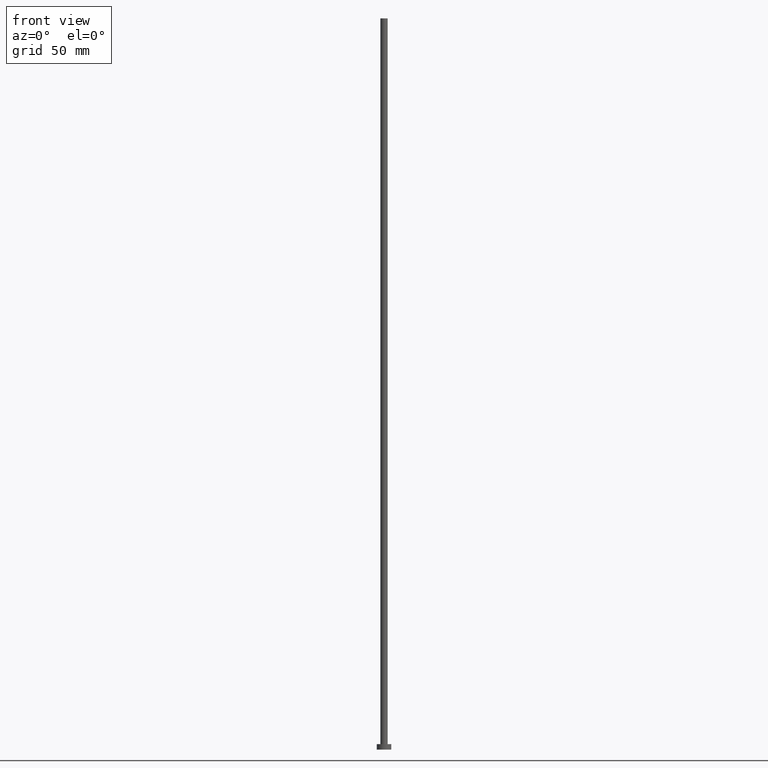
[diagram: clean part render]
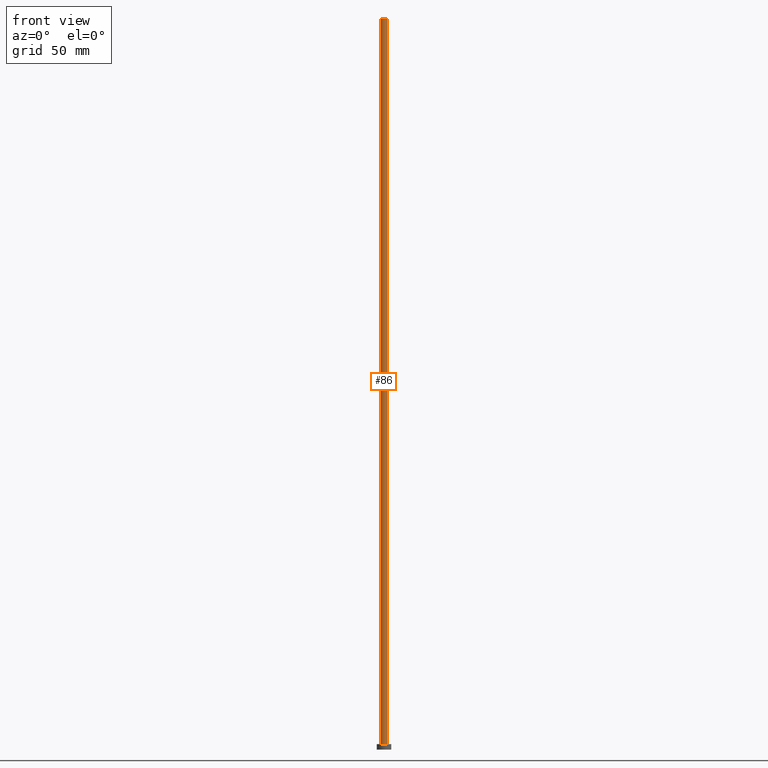
[diagram: same view with one face highlighted and labeled with its STEP entity id]
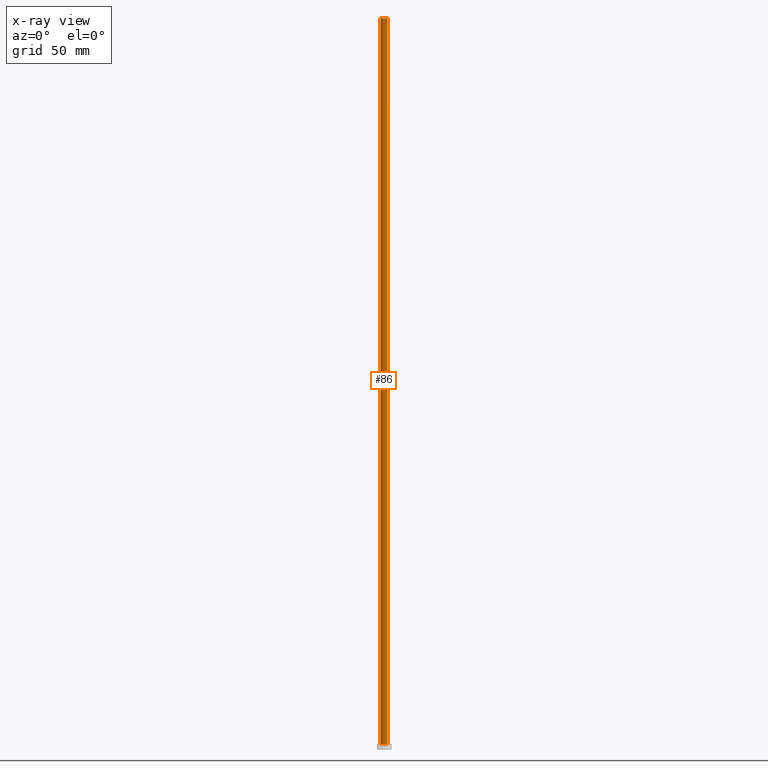
[diagram: x-ray of the same camera — body ghosted, the highlighted face saturated]
A machine part, front view. The second image highlights one B-rep face of the part: STEP entity #86.
The next image is the same camera in x-ray: the body ghosted, the highlighted face saturated — about 0% of this face is hidden behind the body in this view.
In plain terms, the highlighted cylindrical surface (edge-blend (fillet) strip) has radius 2 mm, axis along (-0, -0, -1).
Its self-contained STEP definition (entity closure, byte-faithful):
#3 = CARTESIAN_POINT ( 'NONE',  ( 0.000000000000000000, 0.000000000000000000, 3.000000000000000000 ) ) ;
#8 = VERTEX_POINT ( 'NONE', #247 ) ;
#10 = DIRECTION ( 'NONE',  ( 0.000000000000000000, 0.000000000000000000, 1.000000000000000000 ) ) ;
#11 = EDGE_CURVE ( 'NONE', #8, #79, #64, .T. ) ;
#17 = CARTESIAN_POINT ( 'NONE',  ( 2.000000000000000000, 2.449293598294706414E-16, 3.000000000000000000 ) ) ;
#18 = DIRECTION ( 'NONE',  ( -1.000000000000000000, 0.000000000000000000, 0.000000000000000000 ) ) ;
#20 = DIRECTION ( 'NONE',  ( -0.000000000000000000, -0.000000000000000000, -1.000000000000000000 ) ) ;
#22 = ORIENTED_EDGE ( 'NONE', *, *, #47, .T. ) ;
#30 = CARTESIAN_POINT ( 'NONE',  ( 0.000000000000000000, 0.000000000000000000, 400.0000000000000000 ) ) ;
#43 = VERTEX_POINT ( 'NONE', #180 ) ;
#45 = CARTESIAN_POINT ( 'NONE',  ( 2.000000000000000000, 2.449293598294706414E-16, 400.0000000000000000 ) ) ;
#46 = CIRCLE ( 'NONE', #182, 2.000000000000000000 ) ;
#47 = EDGE_CURVE ( 'NONE', #43, #79, #237, .T. ) ;
#51 = FACE_OUTER_BOUND ( 'NONE', #162, .T. ) ;
#54 = CARTESIAN_POINT ( 'NONE',  ( -2.000000000000000000, 0.000000000000000000, 400.0000000000000000 ) ) ;
#64 = LINE ( 'NONE', #45, #87 ) ;
#74 = CYLINDRICAL_SURFACE ( 'NONE', #160, 2.000000000000000000 ) ;
#75 = EDGE_CURVE ( 'NONE', #200, #43, #111, .T. ) ;
#76 = CARTESIAN_POINT ( 'NONE',  ( -2.000000000000000000, 0.000000000000000000, 400.0000000000000000 ) ) ;
#79 = VERTEX_POINT ( 'NONE', #17 ) ;
#84 = ORIENTED_EDGE ( 'NONE', *, *, #75, .T. ) ;
#86 = ADVANCED_FACE ( 'NONE', ( #51 ), #74, .T. ) ;
#87 = VECTOR ( 'NONE', #20, 1000.000000000000000 ) ;
#105 = CARTESIAN_POINT ( 'NONE',  ( 0.000000000000000000, 0.000000000000000000, 400.0000000000000000 ) ) ;
#111 = LINE ( 'NONE', #54, #211 ) ;
#132 = ORIENTED_EDGE ( 'NONE', *, *, #11, .F. ) ;
#160 = AXIS2_PLACEMENT_3D ( 'NONE', #105, #196, #18 ) ;
#162 = EDGE_LOOP ( 'NONE', ( #132, #205, #84, #22 ) ) ;
#180 = CARTESIAN_POINT ( 'NONE',  ( -2.000000000000000000, 0.000000000000000000, 3.000000000000000000 ) ) ;
#182 = AXIS2_PLACEMENT_3D ( 'NONE', #30, #10, #187 ) ;
#187 = DIRECTION ( 'NONE',  ( 1.000000000000000000, 0.000000000000000000, 0.000000000000000000 ) ) ;
#194 = DIRECTION ( 'NONE',  ( -0.000000000000000000, -0.000000000000000000, -1.000000000000000000 ) ) ;
#196 = DIRECTION ( 'NONE',  ( -0.000000000000000000, -0.000000000000000000, -1.000000000000000000 ) ) ;
#200 = VERTEX_POINT ( 'NONE', #76 ) ;
#205 = ORIENTED_EDGE ( 'NONE', *, *, #254, .F. ) ;
#211 = VECTOR ( 'NONE', #194, 1000.000000000000000 ) ;
#212 = DIRECTION ( 'NONE',  ( 1.000000000000000000, 0.000000000000000000, 0.000000000000000000 ) ) ;
#230 = AXIS2_PLACEMENT_3D ( 'NONE', #3, #241, #212 ) ;
#237 = CIRCLE ( 'NONE', #230, 2.000000000000000000 ) ;
#241 = DIRECTION ( 'NONE',  ( 0.000000000000000000, 0.000000000000000000, 1.000000000000000000 ) ) ;
#247 = CARTESIAN_POINT ( 'NONE',  ( 2.000000000000000000, 2.449293598294706414E-16, 400.0000000000000000 ) ) ;
#254 = EDGE_CURVE ( 'NONE', #200, #8, #46, .T. ) ;